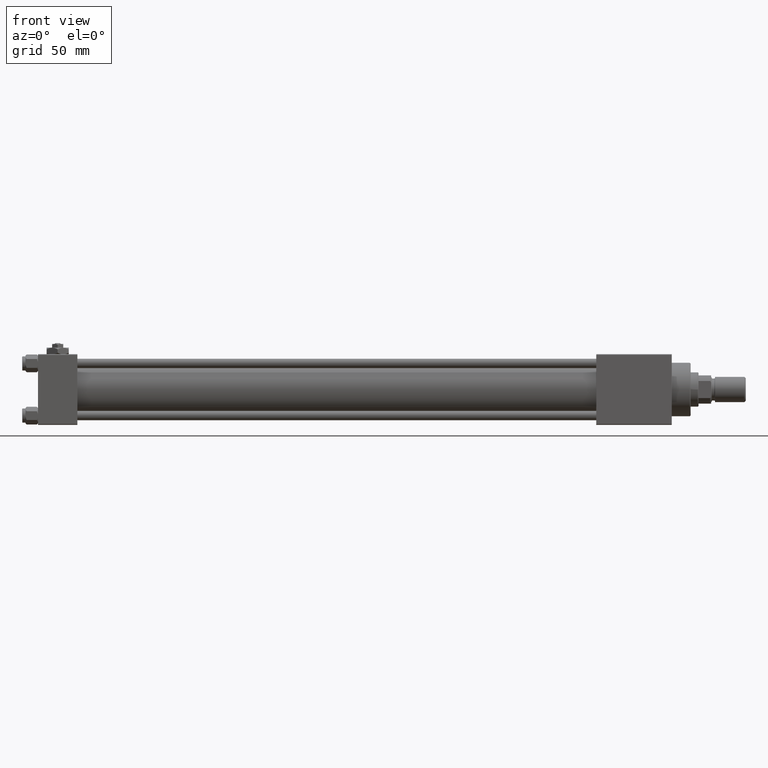
[diagram: clean part render]
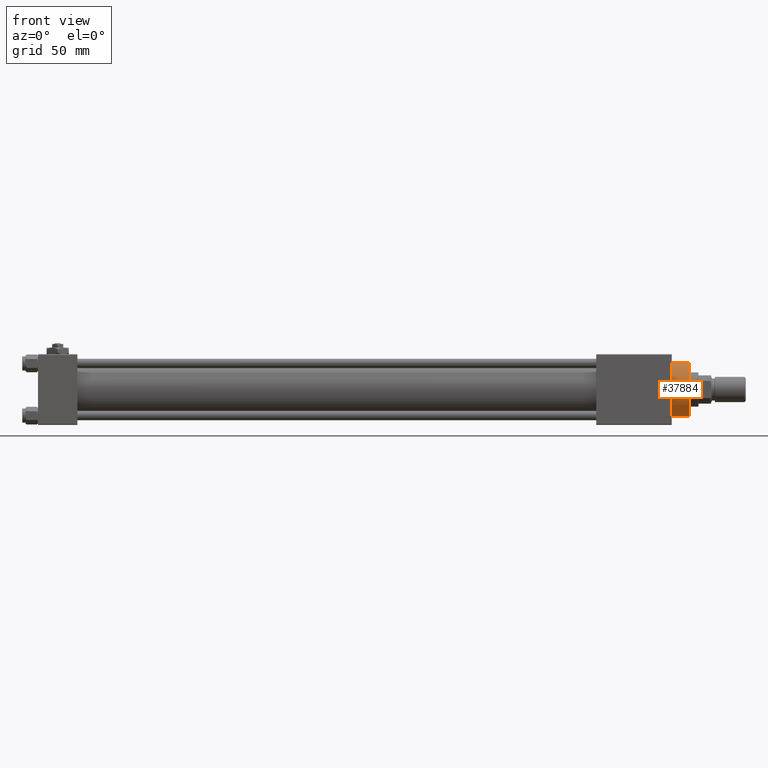
[diagram: same view with one face highlighted and labeled with its STEP entity id]
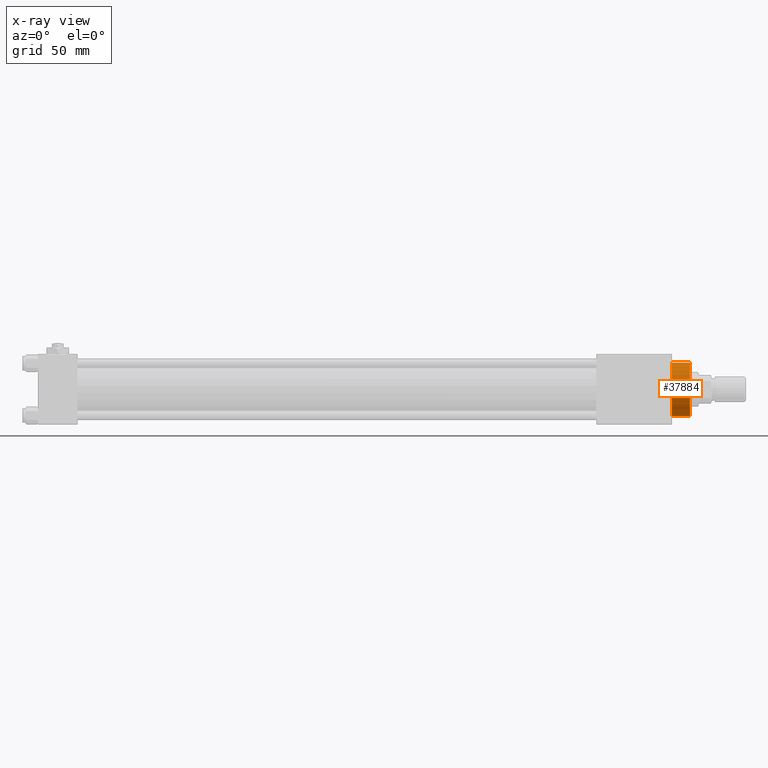
[diagram: x-ray of the same camera — body ghosted, the highlighted face saturated]
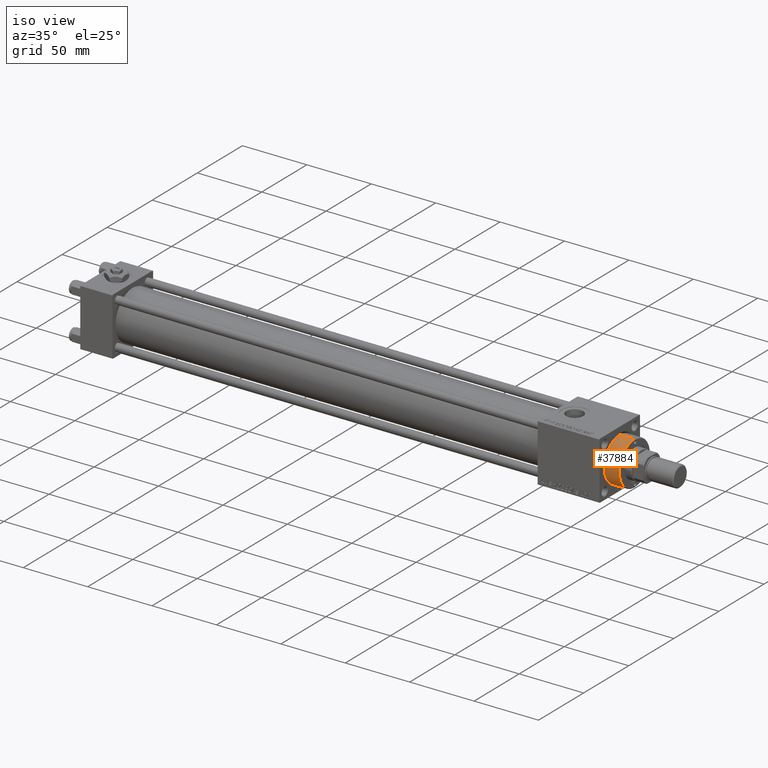
[diagram: same view with one face highlighted and labeled with its STEP entity id]
A machine part, front view. The second image highlights one B-rep face of the part: STEP entity #37884.
The next image is the same camera in x-ray: the body ghosted, the highlighted face saturated — about 0% of this face is hidden behind the body in this view.
A second angle (iso view) of the same face is appended — the face is thin or edge-on in the first view.
In plain terms, the highlighted cylindrical surface (edge-blend (fillet) strip) has radius 17 mm, axis along (-1, -0, -0).
Its self-contained STEP definition (entity closure, byte-faithful):
#50 = VERTEX_POINT ( 'NONE', #6513 ) ;
#436 = VERTEX_POINT ( 'NONE', #24475 ) ;
#822 = AXIS2_PLACEMENT_3D ( 'NONE', #13843, #9324, #17045 ) ;
#2972 = CARTESIAN_POINT ( 'NONE',  ( -17.00000000000000000, 0.000000000000000000, 40.70000000000000284 ) ) ;
#4279 = AXIS2_PLACEMENT_3D ( 'NONE', #42025, #17860, #13873 ) ;
#6513 = CARTESIAN_POINT ( 'NONE',  ( -17.00000000000000000, 0.000000000000000000, 28.69999999999999929 ) ) ;
#8087 = CARTESIAN_POINT ( 'NONE',  ( 17.00000000000000000, 2.081899558550500280E-15, 28.69999999999999929 ) ) ;
#8335 = CARTESIAN_POINT ( 'NONE',  ( 17.00000000000000000, 2.081899558550500280E-15, 40.70000000000000284 ) ) ;
#8434 = EDGE_CURVE ( 'NONE', #436, #21353, #32215, .T. ) ;
#9078 = DIRECTION ( 'NONE',  ( 1.000000000000000000, 0.000000000000000000, 0.000000000000000000 ) ) ;
#9324 = DIRECTION ( 'NONE',  ( 0.000000000000000000, 0.000000000000000000, -1.000000000000000000 ) ) ;
#13107 = LINE ( 'NONE', #8335, #40429 ) ;
#13843 = CARTESIAN_POINT ( 'NONE',  ( 0.000000000000000000, 0.000000000000000000, 40.19999999999999574 ) ) ;
#13873 = DIRECTION ( 'NONE',  ( -1.000000000000000000, 0.000000000000000000, 0.000000000000000000 ) ) ;
#17045 = DIRECTION ( 'NONE',  ( 1.000000000000000000, 0.000000000000000000, 0.000000000000000000 ) ) ;
#17597 = FACE_OUTER_BOUND ( 'NONE', #47184, .T. ) ;
#17860 = DIRECTION ( 'NONE',  ( -0.000000000000000000, -0.000000000000000000, -1.000000000000000000 ) ) ;
#19786 = ORIENTED_EDGE ( 'NONE', *, *, #8434, .T. ) ;
#21061 = CYLINDRICAL_SURFACE ( 'NONE', #4279, 17.00000000000000000 ) ;
#21353 = VERTEX_POINT ( 'NONE', #26233 ) ;
#21867 = VERTEX_POINT ( 'NONE', #8087 ) ;
#22084 = ORIENTED_EDGE ( 'NONE', *, *, #27812, .T. ) ;
#24047 = EDGE_CURVE ( 'NONE', #436, #21867, #13107, .T. ) ;
#24475 = CARTESIAN_POINT ( 'NONE',  ( 17.00000000000000000, 2.081899558550500280E-15, 40.19999999999999574 ) ) ;
#25128 = VECTOR ( 'NONE', #43342, 1000.000000000000000 ) ;
#25545 = CARTESIAN_POINT ( 'NONE',  ( 0.000000000000000000, 0.000000000000000000, 28.69999999999999929 ) ) ;
#26233 = CARTESIAN_POINT ( 'NONE',  ( -17.00000000000000000, 0.000000000000000000, 40.19999999999999574 ) ) ;
#27812 = EDGE_CURVE ( 'NONE', #21353, #50, #38573, .T. ) ;
#29293 = DIRECTION ( 'NONE',  ( -0.000000000000000000, -0.000000000000000000, -1.000000000000000000 ) ) ;
#32215 = CIRCLE ( 'NONE', #822, 17.00000000000000000 ) ;
#33124 = AXIS2_PLACEMENT_3D ( 'NONE', #25545, #48939, #9078 ) ;
#37255 = CIRCLE ( 'NONE', #33124, 17.00000000000000000 ) ;
#37884 = ADVANCED_FACE ( 'NONE', ( #17597 ), #21061, .T. ) ;
#38517 = ORIENTED_EDGE ( 'NONE', *, *, #24047, .F. ) ;
#38573 = LINE ( 'NONE', #2972, #25128 ) ;
#38621 = EDGE_CURVE ( 'NONE', #50, #21867, #37255, .T. ) ;
#40429 = VECTOR ( 'NONE', #29293, 1000.000000000000000 ) ;
#42025 = CARTESIAN_POINT ( 'NONE',  ( 0.000000000000000000, 0.000000000000000000, 40.70000000000000284 ) ) ;
#43342 = DIRECTION ( 'NONE',  ( -0.000000000000000000, -0.000000000000000000, -1.000000000000000000 ) ) ;
#47184 = EDGE_LOOP ( 'NONE', ( #38517, #19786, #22084, #47777 ) ) ;
#47777 = ORIENTED_EDGE ( 'NONE', *, *, #38621, .T. ) ;
#48939 = DIRECTION ( 'NONE',  ( 0.000000000000000000, 0.000000000000000000, 1.000000000000000000 ) ) ;